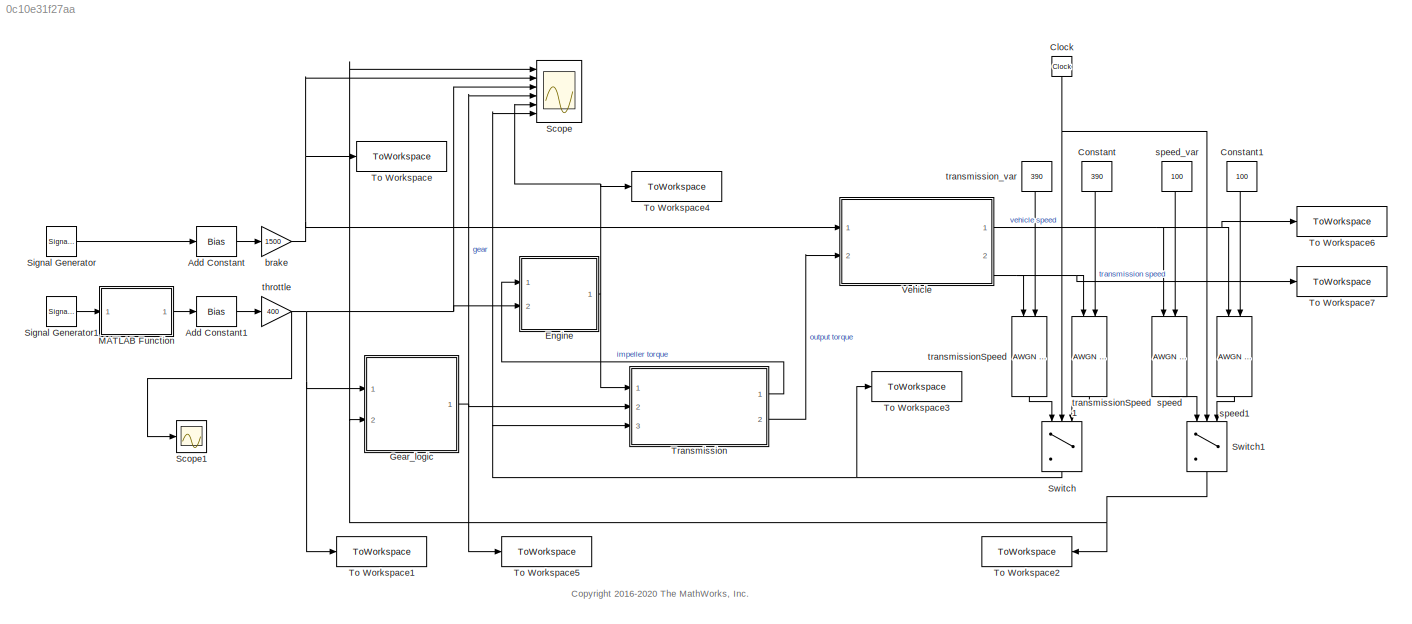
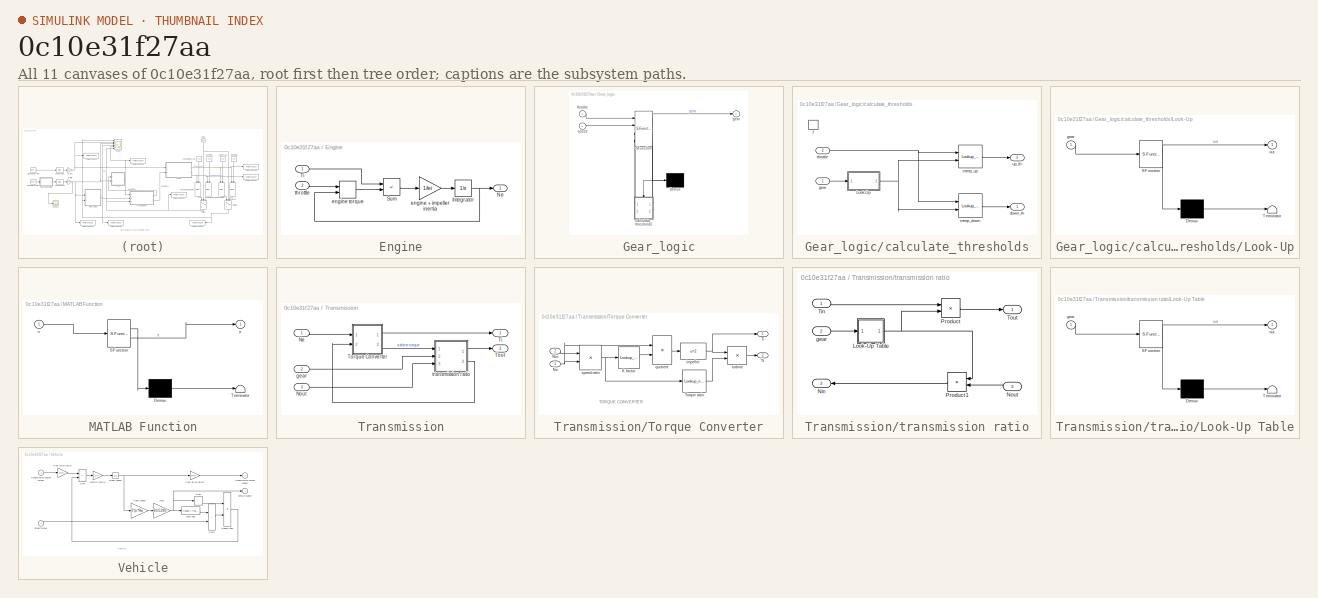
[diagram: thumbnail index - all 11 canvases of the model, root first then tree order]
MODEL slx_0c10e31f27aa
KIND model
CONFIG AbsTol = 1e-6
CONFIG EnableMultiTasking = off
CONFIG FixedStep = auto
CONFIG MaxStep = auto
CONFIG MinStep = auto
CONFIG RelTol = 1e-3
CONFIG SampleTimeConstraint = Unconstrained
CONFIG SolverName = ode5
CONFIG StartTime = 0.0
CONFIG StopTime = 1800
WORKSPACE source: mxarray member
WORKSPACE Iei = 0.0219914882836
WORKSPACE converter_data = [0 0.1 0.2 0.3 0.4 0.5 0.6 0.7 0.8 0.81 0.82 0.83 ... (63 elements, 21x3)]
WORKSPACE downtab = [0 0 0 0 0 0 5 5 5 5 30 30 ... (24 elements, 6x4)]
WORKSPACE downth = [0 5 40 50 90 100]
WORKSPACE emap = [-40 215 245 264 264 267 267 267 267 267 -44 117 ... (110 elements, 10x11)]
WORKSPACE nevec = [800 1200 1600 2000 2400 2800 3200 3600 4000 4400 4800]
WORKSPACE p0 = 0.07934
WORKSPACE p1 = 0.07934
WORKSPACE thvec = [0 20 30 40 50 60 70 80 90 100]
WORKSPACE uptab = [10 10 15 23 40 40 30 30 30 41 70 70 ... (24 elements, 6x4)]
WORKSPACE upth = [0 25 35 50 90 100]
WORKSPACE vehicledata = [3.23 40 0.3 1 50 0]
BLOCK [Bias] Add Constant
  Bias = 1
  SaturateOnIntegerOverflow = off
BLOCK [Bias] Add Constant1
  Bias = 1
  SaturateOnIntegerOverflow = off
BLOCK [Clock] Clock
  DisplayTime = on
  NameLocation = left
BLOCK [Constant] Constant
  NameLocation = left
  Value = 390
BLOCK [Constant] Constant1
  NameLocation = left
  Value = 100
BLOCK [SubSystem] Engine
  Ports = [2, 1]
  RequestExecContextInheritance = off
BLOCK [Integrator] Engine/Integrator
  InitialCondition = 1000
  LimitOutput = on
  LowerSaturationLimit = 600
  Ports = [1, 1]
  UpperSaturationLimit = 6000
  ZeroCross = off
BLOCK [Outport] Engine/Ne
  VectorParamsAs1DForOutWhenUnconnected = off
BLOCK [Sum] Engine/Sum
  IconShape = rectangular
  InputSameDT = on
  Inputs = -+
  OutDataTypeStr = Inherit: Same as first input
  Ports = [2, 1]
  SaturateOnIntegerOverflow = on
BLOCK [Inport] Engine/Ti
BLOCK [Gain] Engine/engine + impeller inertia
  Gain = 1/Iei
  OutDataTypeStr = Inherit: Same as input
  ParamDataTypeStr = Inherit: Same as input
  SaturateOnIntegerOverflow = on
BLOCK [Lookup_n-D] Engine/engine torque
  BreakpointsForDimension1 = thvec
  BreakpointsForDimension2 = nevec
  InputPortMap = u0,u1
  InternalRulePriority = Speed
  Ports = [2, 1]
  Table = emap
BLOCK [Inport] Engine/throttle
  Port = 2
BLOCK [SubSystem] Gear_logic
  ErrorFcn = Stateflow.Translate.translate
  PermitHierarchicalResolution = ExplicitOnly
  Ports = [2, 1]
  RequestExecContextInheritance = off
  SFBlockType = Chart
  TreatAsAtomicUnit = on
BLOCK [Demux] Gear_logic/ Demux 
  Outputs = 1
  Ports = [1, 1]
BLOCK [S-Function] Gear_logic/ SFunction 
  EnableBusSupport = on
  FunctionName = sf_sfun
  Parameters = TWAIT
  PortCounts = [4 4]
  Ports = [4, 4]
  SFcnIsStateOwnerBlock = off
  SFunctionDeploymentMode = off
  Tag = Stateflow S-Function 1
BLOCK [Outport] Gear_logic/ gear
  VectorParamsAs1DForOutWhenUnconnected = off
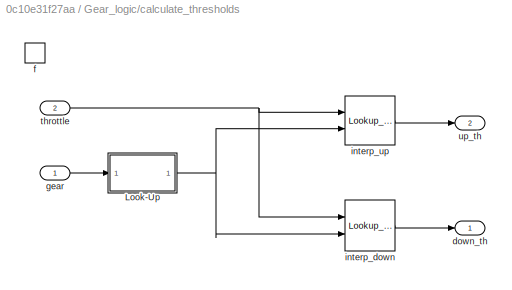
BLOCK [SubSystem] Gear_logic/calculate_thresholds
  Ports = [2, 2, 0, 1]
  PreDeleteFcn = Stateflow.SLINSF.SimulinkMan.removePreDeleteFcn
  RequestExecContextInheritance = off
  UndoDeleteFcn = Stateflow.SLINSF.SimulinkMan.restorePreDeleteFcn
BLOCK [SubSystem] Gear_logic/calculate_thresholds/Look-Up
  ErrorFcn = Stateflow.Translate.translate
  PermitHierarchicalResolution = ExplicitOnly
  Ports = [1, 1]
  RequestExecContextInheritance = off
  SFBlockType = MATLAB Function
  TreatAsAtomicUnit = on
BLOCK [Demux] Gear_logic/calculate_thresholds/Look-Up/ Demux 
  Outputs = 1
  Ports = [1, 1]
BLOCK [S-Function] Gear_logic/calculate_thresholds/Look-Up/ SFunction 
  EnableBusSupport = off
  FunctionName = sf_sfun
  PortCounts = [1 2]
  Ports = [1, 2]
  SFcnIsStateOwnerBlock = off
  SFunctionDeploymentMode = off
  Tag = Stateflow S-Function 3
BLOCK [Terminator] Gear_logic/calculate_thresholds/Look-Up/ Terminator 
BLOCK [Inport] Gear_logic/calculate_thresholds/Look-Up/gear
BLOCK [Outport] Gear_logic/calculate_thresholds/Look-Up/out
  VectorParamsAs1DForOutWhenUnconnected = off
BLOCK [Outport] Gear_logic/calculate_thresholds/down_th
  VectorParamsAs1DForOutWhenUnconnected = off
BLOCK [TriggerPort] Gear_logic/calculate_thresholds/f
  CopyFcn = Stateflow.SLINSF.SimulinkMan.removeBlockPreDeleteFcn
  Ports = []
  PreDeleteFcn = Stateflow.SLINSF.SimulinkMan.unsafePredeleteFcn
  StatesWhenEnabling = held
  TriggerType = function-call
  VariantControl = Variant
BLOCK [Inport] Gear_logic/calculate_thresholds/gear
  OutDataTypeStr = Enum: gearType
  PortDimensions = 1
  SignalType = real
BLOCK [Lookup_n-D] Gear_logic/calculate_thresholds/interp_down
  BreakpointsForDimension1 = downth
  BreakpointsForDimension2 = [1:4]
  InputPortMap = u0,u1
  Ports = [2, 1]
  Table = downtab
BLOCK [Lookup_n-D] Gear_logic/calculate_thresholds/interp_up
  BreakpointsForDimension1 = upth
  BreakpointsForDimension2 = [1:4]
  InputPortMap = u0,u1
  Ports = [2, 1]
  Table = uptab
BLOCK [Inport] Gear_logic/calculate_thresholds/throttle
  OutDataTypeStr = double
  Port = 2
  PortDimensions = 1
  SignalType = real
BLOCK [Outport] Gear_logic/calculate_thresholds/up_th
  Port = 2
  VectorParamsAs1DForOutWhenUnconnected = off
BLOCK [Inport] Gear_logic/speed
  Port = 2
BLOCK [Inport] Gear_logic/throttle
BLOCK [SubSystem] MATLAB Function
  ErrorFcn = Stateflow.Translate.translate
  PermitHierarchicalResolution = ExplicitOnly
  Ports = [1, 1]
  RequestExecContextInheritance = off
  SFBlockType = MATLAB Function
  TreatAsAtomicUnit = on
BLOCK [Demux] MATLAB Function/ Demux 
  Outputs = 1
  Ports = [1, 1]
BLOCK [S-Function] MATLAB Function/ SFunction 
  EnableBusSupport = on
  FunctionName = sf_sfun
  PortCounts = [1 2]
  Ports = [1, 2]
  SFcnIsStateOwnerBlock = off
  SFunctionDeploymentMode = off
  Tag = Stateflow S-Function 4
BLOCK [Terminator] MATLAB Function/ Terminator 
BLOCK [Inport] MATLAB Function/u
BLOCK [Outport] MATLAB Function/y
BLOCK [Scope] Scope
  Floating = off
  NumInputPorts = 6
  Ports = [6]
  ScopeSpecificationString = Simulink.scopes.TimeScopeBlockCfg('CurrentConfiguration', extmgr.ConfigurationSet(extmgr.Configuration('Core','General UI',true),extmgr.Configuration('Core','Source UI',true),extmgr.Configuration('Sources','WiredSimulink',true,'DataLoggingSaveFormat','Array','DataLoggingDecimation','1','DataLoggingDecimateData',true,'DataLoggingVariableName','ScopeData1'),extmgr.Configuration('Visuals','Time Domai...<+1737ch>
BLOCK [Scope] Scope1
  Floating = off
  NumInputPorts = 1
  Ports = [1]
  ScopeSpecificationString = Simulink.scopes.TimeScopeBlockCfg('CurrentConfiguration', extmgr.ConfigurationSet(extmgr.Configuration('Core','General UI',true),extmgr.Configuration('Core','Source UI',true),extmgr.Configuration('Sources','WiredSimulink',true,'DataLoggingVariableName','ScopeData1'),extmgr.Configuration('Visuals','Time Domain',true,'SerializedDisplays',{struct('MinYLimReal','-100.00000','MaxYLimReal','900.00000','...<+1408ch>
BLOCK [SignalGenerator] Signal Generator
  Frequency = 0.01
  Ports = [0, 1]
BLOCK [SignalGenerator] Signal Generator1
  Frequency = 0.017
  Ports = [0, 1]
BLOCK [Switch] Switch
  InputSameDT = off
  NameLocation = left
  SaturateOnIntegerOverflow = off
  Threshold = 100
BLOCK [Switch] Switch1
  InputSameDT = off
  NameLocation = left
  SaturateOnIntegerOverflow = off
  Threshold = 100
BLOCK [ToWorkspace] To Workspace
  FixptAsFi = on
  MaxDataPoints = inf
  Ports = [1]
  SampleTime = -1
  Save2DSignal = 2-D array (concatenate along first dimension)
  VariableName = brake
BLOCK [ToWorkspace] To Workspace1
  FixptAsFi = on
  MaxDataPoints = inf
  Ports = [1]
  SampleTime = -1
  Save2DSignal = 2-D array (concatenate along first dimension)
  VariableName = throttle
BLOCK [ToWorkspace] To Workspace2
  FixptAsFi = on
  MaxDataPoints = inf
  NameLocation = top
  Ports = [1]
  SampleTime = -1
  Save2DSignal = 2-D array (concatenate along first dimension)
  VariableName = noisy_speed
BLOCK [ToWorkspace] To Workspace3
  FixptAsFi = on
  MaxDataPoints = inf
  Ports = [1]
  SampleTime = -1
  Save2DSignal = 2-D array (concatenate along first dimension)
  VariableName = noisy_transmission
BLOCK [ToWorkspace] To Workspace4
  FixptAsFi = on
  MaxDataPoints = inf
  Ports = [1]
  SampleTime = -1
  Save2DSignal = 2-D array (concatenate along first dimension)
  VariableName = revs
BLOCK [ToWorkspace] To Workspace5
  FixptAsFi = on
  MaxDataPoints = inf
  Ports = [1]
  SampleTime = -1
  Save2DSignal = 2-D array (concatenate along first dimension)
  VariableName = gear
BLOCK [ToWorkspace] To Workspace6
  FixptAsFi = on
  MaxDataPoints = inf
  Ports = [1]
  SampleTime = -1
  Save2DSignal = 2-D array (concatenate along first dimension)
  VariableName = speed
BLOCK [ToWorkspace] To Workspace7
  FixptAsFi = on
  MaxDataPoints = inf
  Ports = [1]
  SampleTime = -1
  Save2DSignal = 2-D array (concatenate along first dimension)
  VariableName = transmission
BLOCK [SubSystem] Transmission
  Ports = [3, 2]
  RequestExecContextInheritance = off
BLOCK [Inport] Transmission/Ne
BLOCK [Inport] Transmission/Nout
  Port = 3
BLOCK [Outport] Transmission/Ti
  VectorParamsAs1DForOutWhenUnconnected = off
BLOCK [SubSystem] Transmission/Torque Converter
  Ports = [2, 2]
  RequestExecContextInheritance = off
  ShowPortLabels = none
BLOCK [Lookup_n-D] Transmission/Torque Converter/K factor
  BreakpointsForDimension1 = speedratio
  InputPortMap = u0
  InternalRulePriority = Speed
  NumberOfTableDimensions = 1
  Ports = [1, 1]
  SaturateOnIntegerOverflow = on
  Table = Kfactor
BLOCK [Inport] Transmission/Torque Converter/Ne
BLOCK [Inport] Transmission/Torque Converter/Nin
  NameLocation = top
  Port = 2
BLOCK [Outport] Transmission/Torque Converter/Ti
  VectorParamsAs1DForOutWhenUnconnected = off
BLOCK [Lookup_n-D] Transmission/Torque Converter/Torque ratio
  BreakpointsForDimension1 = speedratio
  InputPortMap = u0
  InternalRulePriority = Speed
  NumberOfTableDimensions = 1
  Ports = [1, 1]
  SaturateOnIntegerOverflow = on
  Table = Torkratio
BLOCK [Outport] Transmission/Torque Converter/Tt
  Port = 2
  VectorParamsAs1DForOutWhenUnconnected = off
BLOCK [Fcn] Transmission/Torque Converter/impeller
  Expr = u^2
BLOCK [Product] Transmission/Torque Converter/quotient
  InputSameDT = on
  Inputs = */
  OutDataTypeStr = Inherit: Same as first input
  Ports = [2, 1]
  SaturateOnIntegerOverflow = on
BLOCK [Product] Transmission/Torque Converter/speed ratio
  InputSameDT = on
  Inputs = */
  OutDataTypeStr = Inherit: Same as first input
  Ports = [2, 1]
  SaturateOnIntegerOverflow = on
BLOCK [Product] Transmission/Torque Converter/turbine
  InputSameDT = on
  OutDataTypeStr = Inherit: Same as first input
  Ports = [2, 1]
  SaturateOnIntegerOverflow = on
BLOCK [Outport] Transmission/Tout
  Port = 2
  VectorParamsAs1DForOutWhenUnconnected = off
BLOCK [Inport] Transmission/gear
  Port = 2
BLOCK [SubSystem] Transmission/transmission ratio
  Ports = [3, 2]
  RequestExecContextInheritance = off
BLOCK [SubSystem] Transmission/transmission ratio/Look-Up Table
  ErrorFcn = Stateflow.Translate.translate
  PermitHierarchicalResolution = ExplicitOnly
  Ports = [1, 1]
  RequestExecContextInheritance = off
  SFBlockType = MATLAB Function
  TreatAsAtomicUnit = on
BLOCK [Demux] Transmission/transmission ratio/Look-Up Table/ Demux 
  Outputs = 1
  Ports = [1, 1]
BLOCK [S-Function] Transmission/transmission ratio/Look-Up Table/ SFunction 
  EnableBusSupport = on
  FunctionName = sf_sfun
  PortCounts = [1 2]
  Ports = [1, 2]
  SFcnIsStateOwnerBlock = off
  SFunctionDeploymentMode = off
  Tag = Stateflow S-Function 2
BLOCK [Terminator] Transmission/transmission ratio/Look-Up Table/ Terminator 
BLOCK [Inport] Transmission/transmission ratio/Look-Up Table/gear
BLOCK [Outport] Transmission/transmission ratio/Look-Up Table/out
  VectorParamsAs1DForOutWhenUnconnected = off
BLOCK [Outport] Transmission/transmission ratio/Nin
  Port = 2
  VectorParamsAs1DForOutWhenUnconnected = off
BLOCK [Inport] Transmission/transmission ratio/Nout
  Port = 3
BLOCK [Product] Transmission/transmission ratio/Product
  InputSameDT = on
  OutDataTypeStr = Inherit: Same as first input
  Ports = [2, 1]
  SaturateOnIntegerOverflow = on
BLOCK [Product] Transmission/transmission ratio/Product1
  InputSameDT = on
  OutDataTypeStr = Inherit: Same as first input
  Ports = [2, 1]
  SaturateOnIntegerOverflow = on
BLOCK [Inport] Transmission/transmission ratio/Tin
BLOCK [Outport] Transmission/transmission ratio/Tout
  VectorParamsAs1DForOutWhenUnconnected = off
BLOCK [Inport] Transmission/transmission ratio/gear
  Port = 2
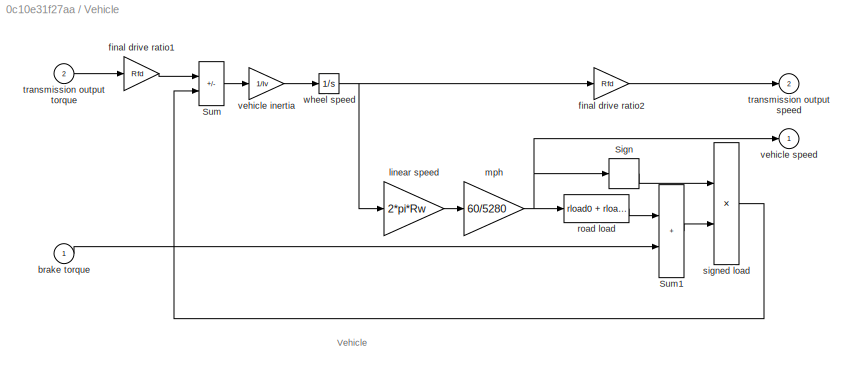
BLOCK [SubSystem] Vehicle
  Ports = [2, 2]
  RequestExecContextInheritance = off
  ShowPortLabels = none
BLOCK [Signum] Vehicle/Sign
BLOCK [Sum] Vehicle/Sum
  IconShape = rectangular
  InputSameDT = on
  Inputs = +-
  OutDataTypeStr = Inherit: Same as first input
  Ports = [2, 1]
  SaturateOnIntegerOverflow = on
BLOCK [Sum] Vehicle/Sum1
  IconShape = rectangular
  InputSameDT = on
  OutDataTypeStr = Inherit: Same as first input
  Ports = [2, 1]
  SaturateOnIntegerOverflow = on
BLOCK [Inport] Vehicle/brake torque
BLOCK [Gain] Vehicle/final drive ratio1
  Gain = Rfd
  OutDataTypeStr = Inherit: Same as input
  ParamDataTypeStr = Inherit: Same as input
  SaturateOnIntegerOverflow = on
BLOCK [Gain] Vehicle/final drive ratio2
  Gain = Rfd
  OutDataTypeStr = Inherit: Same as input
  ParamDataTypeStr = Inherit: Same as input
  SaturateOnIntegerOverflow = on
BLOCK [Gain] Vehicle/linear speed
  Gain = 2*pi*Rw
  NameLocation = top
  OutDataTypeStr = Inherit: Same as input
  ParamDataTypeStr = Inherit: Same as input
  SaturateOnIntegerOverflow = on
BLOCK [Gain] Vehicle/mph
  Gain = 60/5280
  NameLocation = top
  OutDataTypeStr = Inherit: Same as input
  ParamDataTypeStr = Inherit: Same as input
  SaturateOnIntegerOverflow = on
BLOCK [Fcn] Vehicle/road load
  Expr = rload0 + rload2*u^2
BLOCK [Product] Vehicle/signed load
  InputSameDT = on
  OutDataTypeStr = Inherit: Same as first input
  Ports = [2, 1]
  SaturateOnIntegerOverflow = on
BLOCK [Outport] Vehicle/transmission output speed
  Port = 2
  VectorParamsAs1DForOutWhenUnconnected = off
BLOCK [Inport] Vehicle/transmission output torque
  Port = 2
BLOCK [Gain] Vehicle/vehicle inertia
  Gain = 1/Iv
  OutDataTypeStr = Inherit: Same as input
  ParamDataTypeStr = Inherit: Same as input
  SaturateOnIntegerOverflow = on
BLOCK [Outport] Vehicle/vehicle speed
  VectorParamsAs1DForOutWhenUnconnected = off
BLOCK [Integrator] Vehicle/wheel speed
  InitialCondition = N20/Rfd
  Ports = [1, 1]
  ZeroCross = off
BLOCK [Gain] brake
  Gain = 1500
BLOCK [Reference] speed  REF=commchan3/AWGN
Channel
  Ports = [2, 1]
  SourceBlock = commchan3/AWGN\nChannel
  SourceProductBaseCode = CM
  SourceType = AWGN Channel
  UserDataPersistent = on
BLOCK [Reference] speed1  REF=commchan3/AWGN
Channel
  NameLocation = right
  Ports = [2, 1]
  SourceBlock = commchan3/AWGN\nChannel
  SourceProductBaseCode = CM
  SourceType = AWGN Channel
  UserDataPersistent = on
BLOCK [Constant] speed_var
  NameLocation = top
  Value = 100
BLOCK [Gain] throttle
  Gain = 400
BLOCK [Reference] transmissionSpeed  REF=commchan3/AWGN
Channel
  NameLocation = left
  Ports = [2, 1]
  SourceBlock = commchan3/AWGN\nChannel
  SourceProductBaseCode = CM
  SourceType = AWGN Channel
  UserDataPersistent = on
BLOCK [Reference] transmissionSpeed1  REF=commchan3/AWGN
Channel
  NameLocation = top
  Ports = [2, 1]
  SourceBlock = commchan3/AWGN\nChannel
  SourceProductBaseCode = CM
  SourceType = AWGN Channel
  UserDataPersistent = on
BLOCK [Constant] transmission_var
  NameLocation = top
  Value = 390
ANNOTATION (root): <copyright redacted>
ANNOTATION Transmission/Torque Converter: TORQUE CONVERTER
ANNOTATION Vehicle: Vehicle
LINE Add Constant1:1 -> throttle:1
LINE Add Constant:1 -> brake:1
NET Clock:1 -> Switch1:2, Switch:2
LINE Constant1:1 -> speed1:2
LINE Constant:1 -> transmissionSpeed1:2
NET Engine/Integrator:1 -> Engine/Ne:1, Engine/engine torque:2
LINE Engine/Sum:1 -> Engine/engine + impeller inertia:1
LINE Engine/Ti:1 -> Engine/Sum:1
LINE Engine/engine + impeller inertia:1 -> Engine/Integrator:1
LINE Engine/engine torque:1 -> Engine/Sum:2
LINE Engine/throttle:1 -> Engine/engine torque:1
NET Engine:1 -> Scope:5, To Workspace4:1, Transmission:1
NET Gear_logic:1 -> Scope:4, To Workspace5:1, Transmission:2
LINE MATLAB Function:1 -> Add Constant1:1
LINE Signal Generator1:1 -> MATLAB Function:1
LINE Signal Generator:1 -> Add Constant:1
NET Switch1:1 -> Gear_logic:2, Scope:1, To Workspace2:1
NET Switch:1 -> Scope:6, To Workspace3:1, Transmission:3
LINE Transmission/Ne:1 -> Transmission/Torque Converter:1
LINE Transmission/Nout:1 -> Transmission/transmission ratio:3
LINE Transmission/Torque Converter/K factor:1 -> Transmission/Torque Converter/quotient:2
NET Transmission/Torque Converter/Ne:1 -> Transmission/Torque Converter/quotient:1, Transmission/Torque Converter/speed ratio:2
LINE Transmission/Torque Converter/Nin:1 -> Transmission/Torque Converter/speed ratio:1
LINE Transmission/Torque Converter/Torque ratio:1 -> Transmission/Torque Converter/turbine:2
NET Transmission/Torque Converter/impeller:1 -> Transmission/Torque Converter/Ti:1, Transmission/Torque Converter/turbine:1
LINE Transmission/Torque Converter/quotient:1 -> Transmission/Torque Converter/impeller:1
NET Transmission/Torque Converter/speed ratio:1 -> Transmission/Torque Converter/K factor:1, Transmission/Torque Converter/Torque ratio:1
LINE Transmission/Torque Converter/turbine:1 -> Transmission/Torque Converter/Tt:1
LINE Transmission/Torque Converter:1 -> Transmission/Ti:1
LINE Transmission/Torque Converter:2 -> Transmission/transmission ratio:1
LINE Transmission/gear:1 -> Transmission/transmission ratio:2
NET Transmission/transmission ratio/Look-Up Table:1 -> Transmission/transmission ratio/Product1:1, Transmission/transmission ratio/Product:2
LINE Transmission/transmission ratio/Nout:1 -> Transmission/transmission ratio/Product1:2
LINE Transmission/transmission ratio/Product1:1 -> Transmission/transmission ratio/Nin:1
LINE Transmission/transmission ratio/Product:1 -> Transmission/transmission ratio/Tout:1
LINE Transmission/transmission ratio/Tin:1 -> Transmission/transmission ratio/Product:1
LINE Transmission/transmission ratio/gear:1 -> Transmission/transmission ratio/Look-Up Table:1
LINE Transmission/transmission ratio:1 -> Transmission/Tout:1
LINE Transmission/transmission ratio:2 -> Transmission/Torque Converter:2
LINE Transmission:1 -> Engine:1
LINE Transmission:2 -> Vehicle:2
LINE Vehicle/Sign:1 -> Vehicle/signed load:1
LINE Vehicle/Sum1:1 -> Vehicle/signed load:2
LINE Vehicle/Sum:1 -> Vehicle/vehicle inertia:1
LINE Vehicle/brake torque:1 -> Vehicle/Sum1:2
LINE Vehicle/final drive ratio1:1 -> Vehicle/Sum:1
LINE Vehicle/final drive ratio2:1 -> Vehicle/transmission output speed:1
LINE Vehicle/linear speed:1 -> Vehicle/mph:1
NET Vehicle/mph:1 -> Vehicle/Sign:1, Vehicle/road load:1, Vehicle/vehicle speed:1
LINE Vehicle/road load:1 -> Vehicle/Sum1:1
LINE Vehicle/signed load:1 -> Vehicle/Sum:2
LINE Vehicle/transmission output torque:1 -> Vehicle/final drive ratio1:1
LINE Vehicle/vehicle inertia:1 -> Vehicle/wheel speed:1
NET Vehicle/wheel speed:1 -> Vehicle/final drive ratio2:1, Vehicle/linear speed:1
NET Vehicle:1 -> To Workspace6:1, speed1:1, speed:1
NET Vehicle:2 -> To Workspace7:1, transmissionSpeed1:1, transmissionSpeed:1
NET brake:1 -> Scope:2, To Workspace:1, Vehicle:1
LINE speed1:1 -> Switch1:3
LINE speed:1 -> Switch1:1
LINE speed_var:1 -> speed:2
NET throttle:1 -> Engine:2, Gear_logic:1, Scope1:1, Scope:3, To Workspace1:1
LINE transmissionSpeed1:1 -> Switch:3
LINE transmissionSpeed:1 -> Switch:1
LINE transmission_var:1 -> transmissionSpeed:2
note: NET lines group one-source signal fan-out (src -> all destinations, sorted); 1:1 wires keep LINE
CHART Gear_logic states=6 transitions=7
  STATE_LABEL 'gear\nen,du:\n[down_threshold,up_threshold] = calculate_thresholds(gear,throttle);\nup = duration(speed >= up_threshold) > TWAIT;\ndown = duration(speed <= down_threshold) > TWAIT;'
  STATE_LABEL 'first\n'
  STATE_LABEL 'second\n'
  STATE_LABEL 'third\n'
  STATE_LABEL 'fourth\n'
  STATE_LABEL '[up]'
  STATE_LABEL '[up]'
  STATE_LABEL '[up]'
  STATE_LABEL '[down]'
  STATE_LABEL '[down]'
  STATE_LABEL '[down]'
  STATE_LABEL 'first\n'
  STATE_LABEL 'second\n'
  STATE_LABEL 'third\n'
  STATE_LABEL 'fourth\n'
  STATE_LABEL '[down_th,up_th] = calculate_thresholds(gear,throttle)'
CHART Transmission/transmission
ratio/Look-Up
Table states=1 transitions=1
  STATE_LABEL 'eML_blk_kernel()'
  STATE_LABEL 'SCRIPT:\nfunction out = fcn(gear)\n    %#codegen\n    table = [2.393 1.450 1.000 0.677];\n    switch(gear)\n        case gearType.fourth;\n            out=table(4);        \n        case gearType.third;\n            out=table(3);            \n        case gearType.second;\n            out=table(2);\n        otherwise; % gearType.first\n            out=table(1);\n    end\n    \nend\n'
CHART Gear_logic/calculate_thresholds/Look-Up states=1 transitions=1
  STATE_LABEL 'eML_blk_kernel()'
  STATE_LABEL 'SCRIPT:\nfunction out = fcn(gear)\n    %#codegen\n    table = [1 2 3 4];\n    switch(gear)\n        case gearType.fourth;\n            out=table(4);        \n        case gearType.third;\n            out=table(3);\n        case gearType.second;\n            out=table(2);            \n        otherwise; % gearType.first\n            out=table(1);\n    end\n    \nend\n'
CHART MATLAB Function states=1 transitions=1
  STATE_LABEL 'eML_blk_kernel()'
  STATE_LABEL 'SCRIPT:\nfunction y = fcn(u)\n\ny = -u;\n'
CHART  states=0 transitions=0
CHART  states=0 transitions=0
CHART  states=0 transitions=0
CHART  states=0 transitions=0
